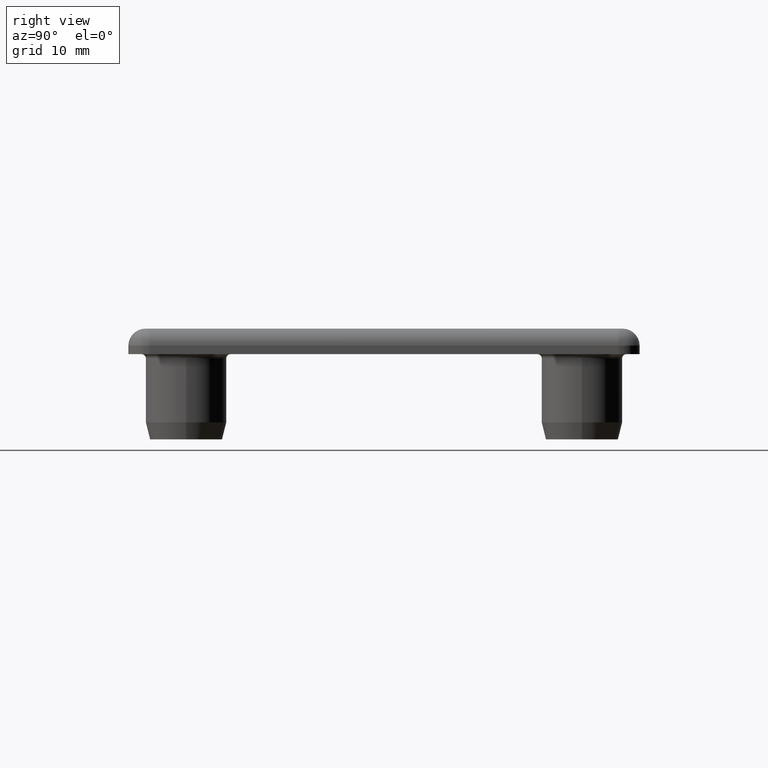
[diagram: clean part render]
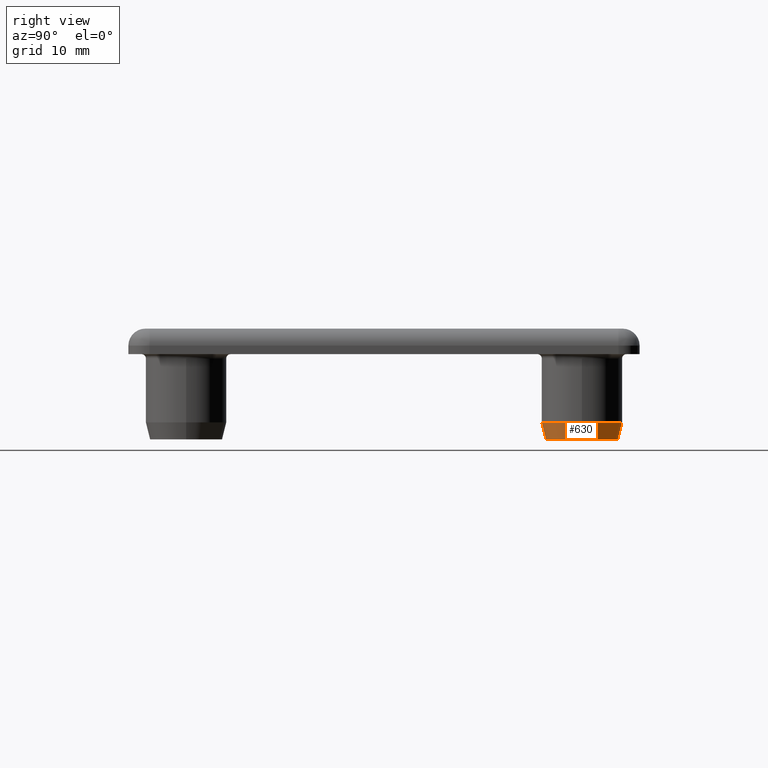
[diagram: same view with one face highlighted and labeled with its STEP entity id]
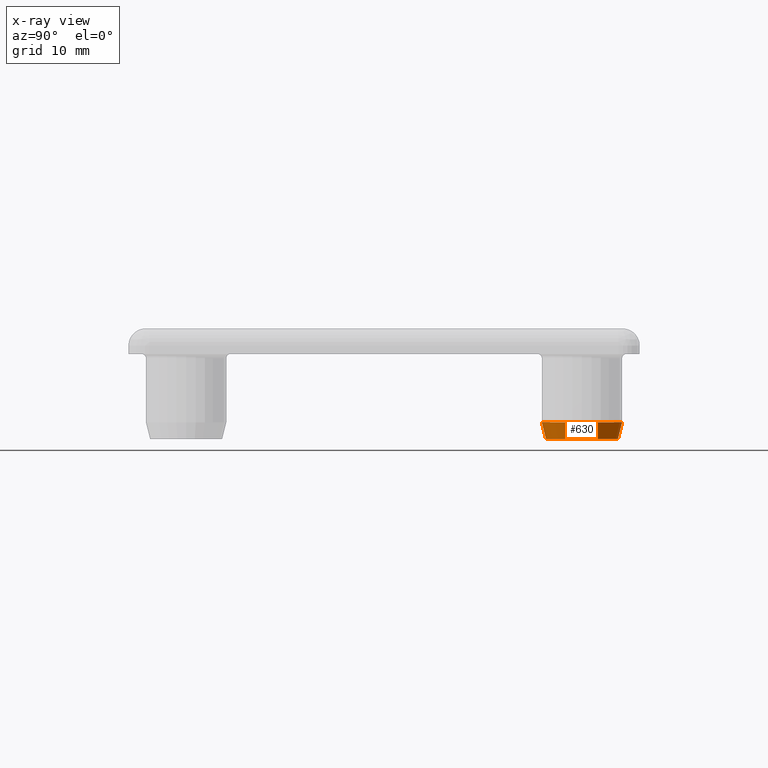
[diagram: x-ray of the same camera — body ghosted, the highlighted face saturated]
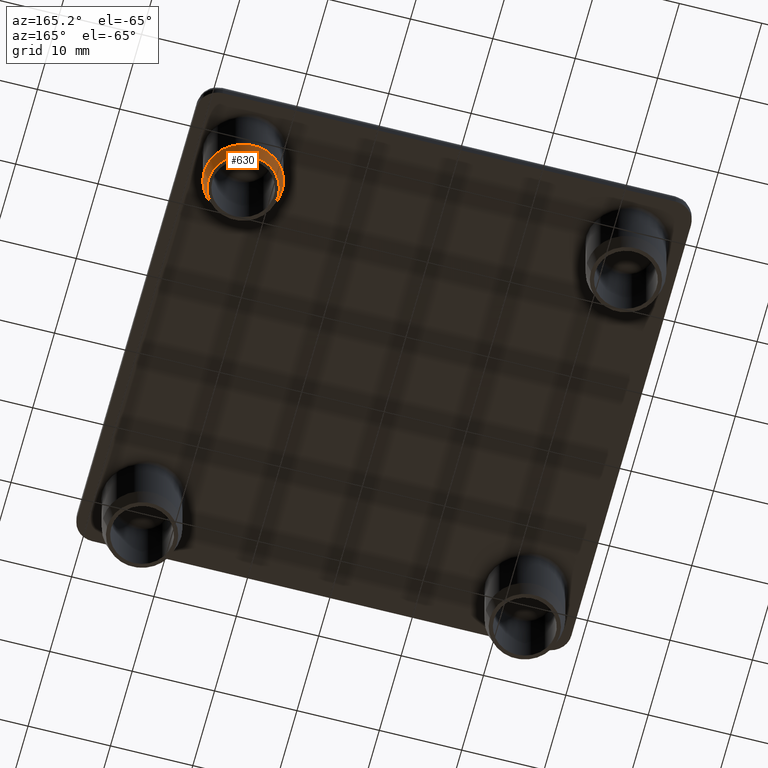
[diagram: same view with one face highlighted and labeled with its STEP entity id]
A machine part, right view. The second image highlights one B-rep face of the part: STEP entity #630.
The next image is the same camera in x-ray: the body ghosted, the highlighted face saturated — about 0% of this face is hidden behind the body in this view.
A second angle (auxiliary view) of the same face is appended — the face is thin or edge-on in the first view.
In plain terms, the highlighted conical surface has half-angle 14.036 deg.
Its self-contained STEP definition (entity closure, byte-faithful):
#102=FACE_BOUND('',#178,.T.);
#126=FACE_OUTER_BOUND('',#177,.T.);
#177=EDGE_LOOP('',(#459));
#178=EDGE_LOOP('',(#460));
#251=CIRCLE('',#685,4.25);
#252=CIRCLE('',#686,4.75);
#315=VERTEX_POINT('',#1040);
#316=VERTEX_POINT('',#1042);
#375=EDGE_CURVE('',#315,#315,#251,.T.);
#376=EDGE_CURVE('',#316,#316,#252,.T.);
#459=ORIENTED_EDGE('',*,*,#375,.F.);
#460=ORIENTED_EDGE('',*,*,#376,.F.);
#626=CONICAL_SURFACE('',#684,0.498749999999993,14.0362434679265);
#630=ADVANCED_FACE('',(#126,#102),#626,.T.);
#684=AXIS2_PLACEMENT_3D('',#1039,#799,#800);
#685=AXIS2_PLACEMENT_3D('',#1041,#801,#802);
#686=AXIS2_PLACEMENT_3D('',#1043,#803,#804);
#799=DIRECTION('center_axis',(-8.40035663382069E-16,-2.1987789199263E-16,
1.));
#800=DIRECTION('ref_axis',(0.581108581114913,-0.813826036051079,3.0920957917825E-16));
#801=DIRECTION('center_axis',(0.,0.,-1.));
#802=DIRECTION('ref_axis',(-1.,0.,0.));
#803=DIRECTION('center_axis',(0.,0.,1.));
#804=DIRECTION('ref_axis',(-1.,0.,0.));
#1039=CARTESIAN_POINT('Origin',(23.23,53.23,-25.005));
#1040=CARTESIAN_POINT('',(27.48,53.23,-10.));
#1041=CARTESIAN_POINT('Origin',(23.23,53.23,-10.));
#1042=CARTESIAN_POINT('',(27.98,53.23,-8.));
#1043=CARTESIAN_POINT('Origin',(23.23,53.23,-8.));